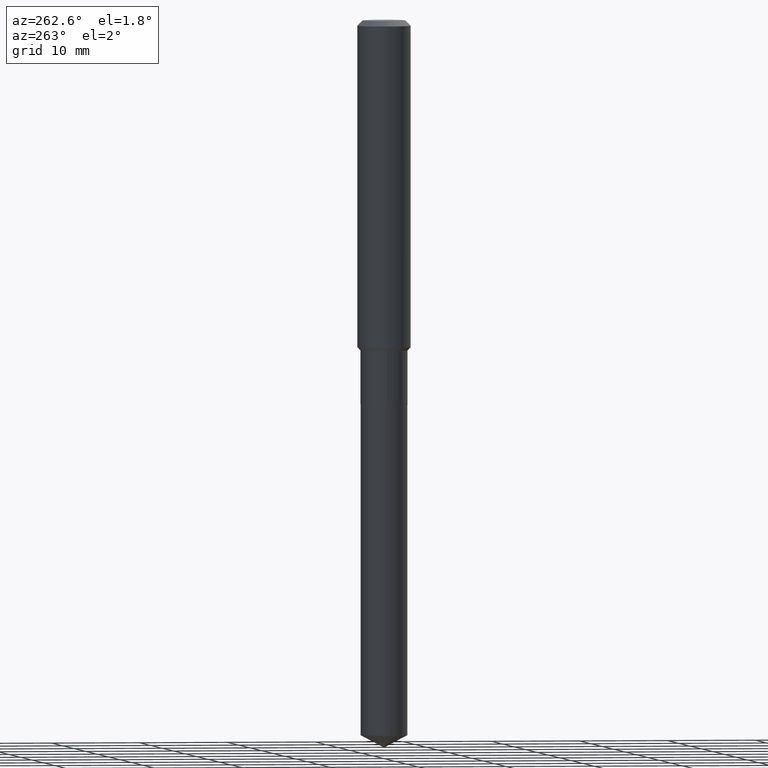
[diagram: clean part render]
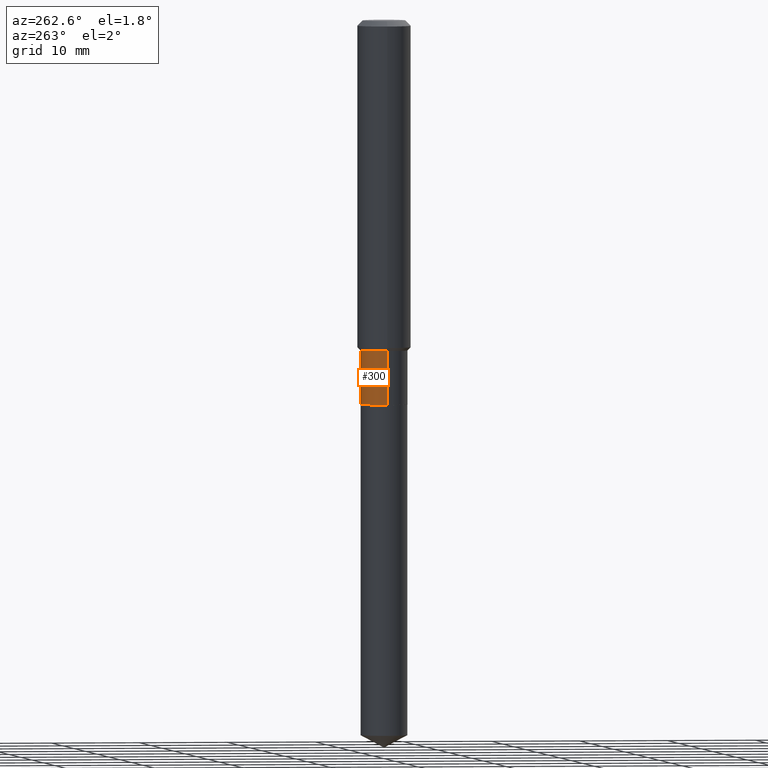
[diagram: same view with one face highlighted and labeled with its STEP entity id]
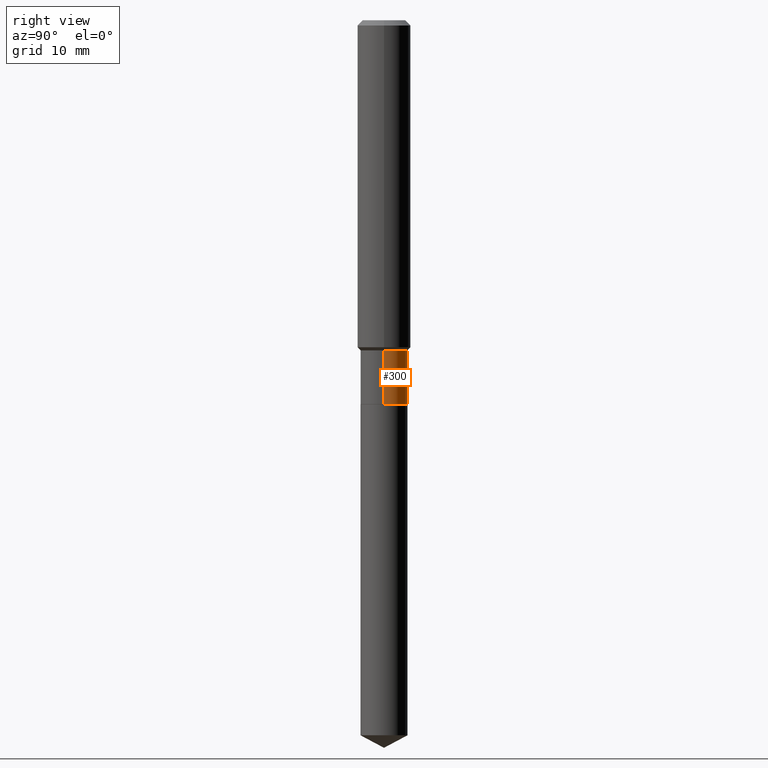
[diagram: same view with one face highlighted and labeled with its STEP entity id]
A machine part, auxiliary view. The second image highlights one B-rep face of the part: STEP entity #300.
A second angle (right view) of the same face is appended — the face is thin or edge-on in the first view.
In plain terms, the highlighted cylindrical surface (edge-blend (fillet) strip) has radius 2.6505 mm, axis along (-0, 0, 1).
Its self-contained STEP definition (entity closure, byte-faithful):
#3 = EDGE_CURVE ( 'NONE', #156, #382, #23, .T. ) ;
#8 = EDGE_CURVE ( 'NONE', #153, #382, #288, .T. ) ;
#23 = CIRCLE ( 'NONE', #334, 0.1043499999999999567 ) ;
#37 = EDGE_CURVE ( 'NONE', #70, #153, #158, .T. ) ;
#58 = DIRECTION ( 'NONE',  ( -2.445468806185136597E-29, 3.491481338843145583E-15, 1.000000000000000000 ) ) ;
#70 = VERTEX_POINT ( 'NONE', #324 ) ;
#84 = EDGE_LOOP ( 'NONE', ( #183, #148, #128, #406 ) ) ;
#91 = DIRECTION ( 'NONE',  ( -2.445468806185136877E-29, 3.491481338843145188E-15, 1.000000000000000000 ) ) ;
#98 = DIRECTION ( 'NONE',  ( 1.000000000000000000, -6.982962677686263555E-15, 0.000000000000000000 ) ) ;
#121 = CARTESIAN_POINT ( 'NONE',  ( 0.000000000000000000, 0.000000000000000000, 0.000000000000000000 ) ) ;
#128 = ORIENTED_EDGE ( 'NONE', *, *, #3, .F. ) ;
#148 = ORIENTED_EDGE ( 'NONE', *, *, #8, .T. ) ;
#153 = VERTEX_POINT ( 'NONE', #295 ) ;
#156 = VERTEX_POINT ( 'NONE', #405 ) ;
#158 = CIRCLE ( 'NONE', #228, 0.1043499999999999844 ) ;
#166 = CARTESIAN_POINT ( 'NONE',  ( 3.581878160419369815E-29, -5.113972717003555292E-15, -1.464700000000000113 ) ) ;
#182 = VECTOR ( 'NONE', #91, 39.37007874015748143 ) ;
#183 = ORIENTED_EDGE ( 'NONE', *, *, #37, .T. ) ;
#186 = DIRECTION ( 'NONE',  ( -2.445468806185136597E-29, 3.491481338843145583E-15, 1.000000000000000000 ) ) ;
#228 = AXIS2_PLACEMENT_3D ( 'NONE', #353, #58, #98 ) ;
#259 = VECTOR ( 'NONE', #457, 39.37007874015748143 ) ;
#268 = CARTESIAN_POINT ( 'NONE',  ( 0.1043499999999999706, -7.286721554165617206E-16, 5.088290465543058008E-30 ) ) ;
#288 = LINE ( 'NONE', #316, #182 ) ;
#295 = CARTESIAN_POINT ( 'NONE',  ( -0.1043499999999999844, -4.790626262564358219E-15, -1.704200000000000159 ) ) ;
#300 = ADVANCED_FACE ( 'NONE', ( #407 ), #375, .T. ) ;
#303 = CARTESIAN_POINT ( 'NONE',  ( -0.1043499999999999567, -4.790626262564358219E-15, -1.464700000000000113 ) ) ;
#316 = CARTESIAN_POINT ( 'NONE',  ( -0.1043499999999999706, 7.414513447656643348E-16, -5.132908766680992704E-30 ) ) ;
#324 = CARTESIAN_POINT ( 'NONE',  ( 0.1043499999999999844, -6.678854653073050255E-15, -1.704200000000000159 ) ) ;
#334 = AXIS2_PLACEMENT_3D ( 'NONE', #166, #432, #430 ) ;
#338 = DIRECTION ( 'NONE',  ( 1.000000000000000000, -6.982962677686266711E-15, 4.876176775795936353E-29 ) ) ;
#353 = CARTESIAN_POINT ( 'NONE',  ( 4.167567939500710177E-29, -5.950182497656488633E-15, -1.704200000000000159 ) ) ;
#369 = EDGE_CURVE ( 'NONE', #70, #156, #378, .T. ) ;
#373 = AXIS2_PLACEMENT_3D ( 'NONE', #121, #186, #338 ) ;
#375 = CYLINDRICAL_SURFACE ( 'NONE', #373, 0.1043499999999999706 ) ;
#378 = LINE ( 'NONE', #268, #259 ) ;
#382 = VERTEX_POINT ( 'NONE', #303 ) ;
#405 = CARTESIAN_POINT ( 'NONE',  ( 0.1043499999999999567, -5.842644872420116914E-15, -1.464700000000000113 ) ) ;
#406 = ORIENTED_EDGE ( 'NONE', *, *, #369, .F. ) ;
#407 = FACE_OUTER_BOUND ( 'NONE', #84, .T. ) ;
#430 = DIRECTION ( 'NONE',  ( 1.000000000000000000, -6.982962677686265922E-15, 0.000000000000000000 ) ) ;
#432 = DIRECTION ( 'NONE',  ( -2.445468806185136597E-29, 3.491481338843145583E-15, 1.000000000000000000 ) ) ;
#457 = DIRECTION ( 'NONE',  ( -2.445468806185136877E-29, 3.491481338843145188E-15, 1.000000000000000000 ) ) ;